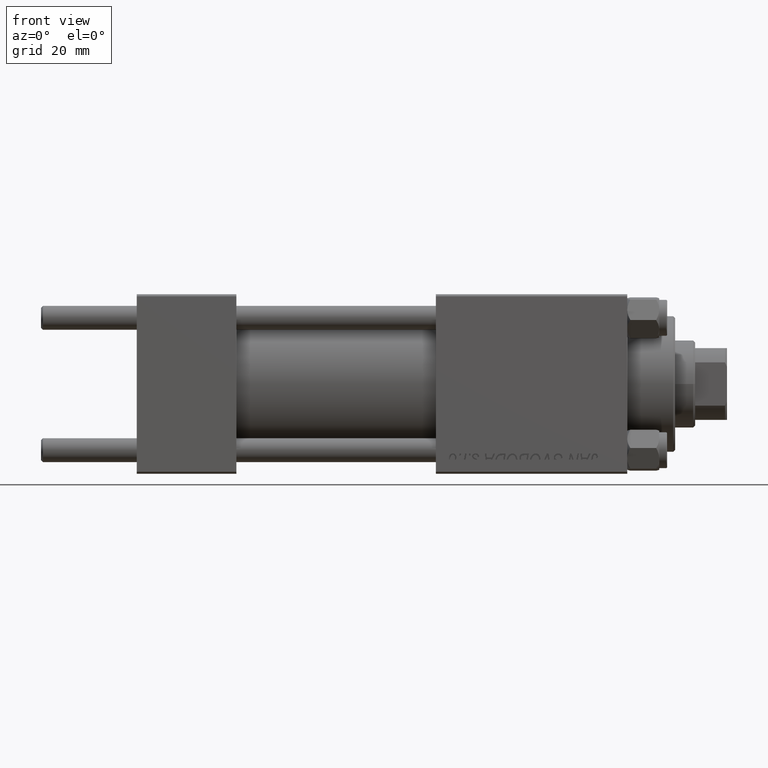
[diagram: clean part render]
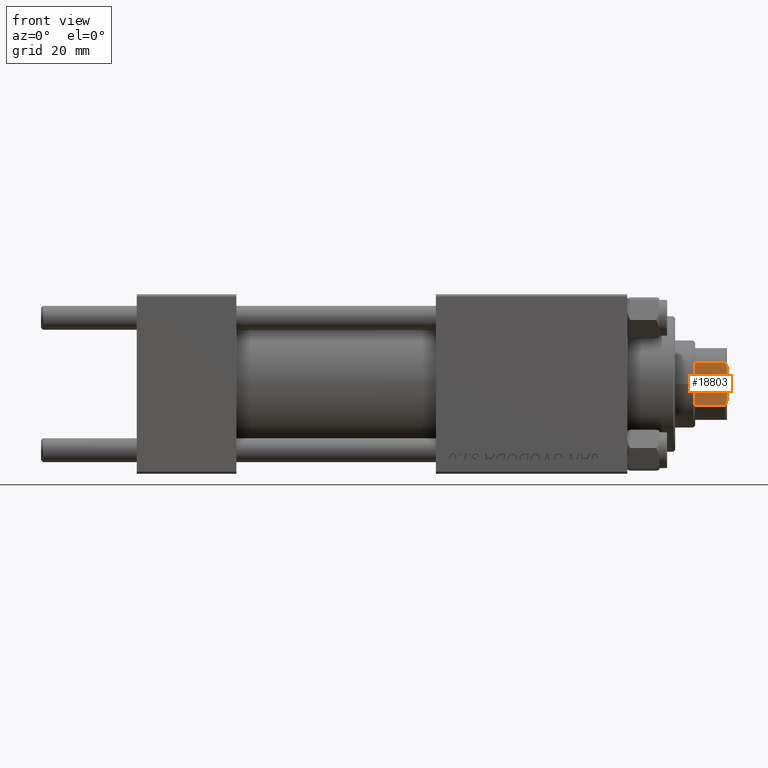
[diagram: same view with one face highlighted and labeled with its STEP entity id]
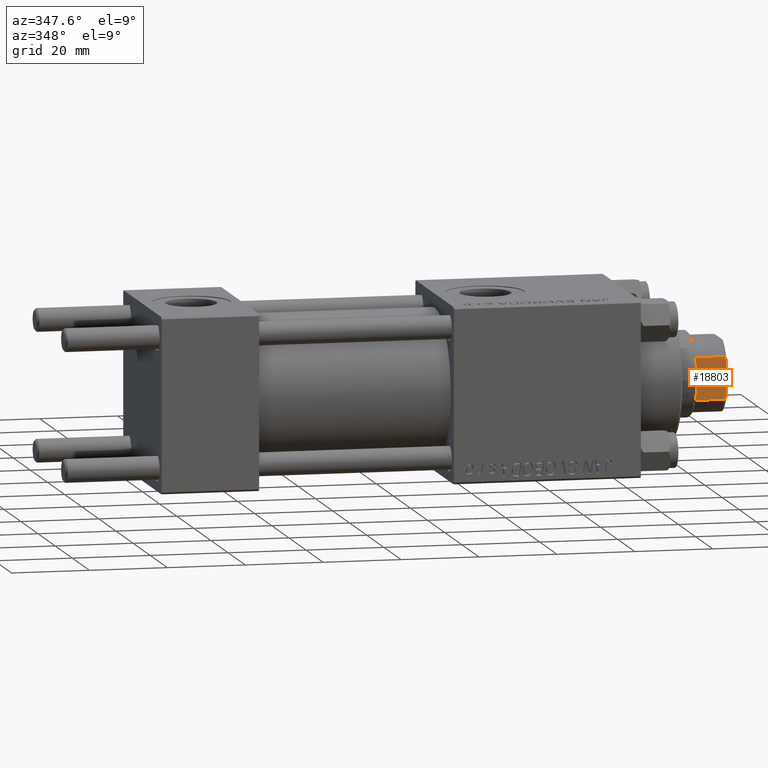
[diagram: same view with one face highlighted and labeled with its STEP entity id]
A machine part, front view. The second image highlights one B-rep face of the part: STEP entity #18803.
A second angle (auxiliary view) of the same face is appended — the face is thin or edge-on in the first view.
In plain terms, the highlighted planar face has unit normal (0, 1, 0).
Its self-contained STEP definition (entity closure, byte-faithful):
#1707 = VERTEX_POINT ( 'NONE', #35439 ) ;
#2202 = CARTESIAN_POINT ( 'NONE',  ( 8.999999999999996447, 5.408326913195991459, 122.4999999999999716 ) ) ;
#2976 = CARTESIAN_POINT ( 'NONE',  ( 8.999999999999996447, 5.408326913195991459, 122.4999999999999716 ) ) ;
#3876 = EDGE_CURVE ( 'NONE', #48873, #24245, #33319, .T. ) ;
#4327 = EDGE_CURVE ( 'NONE', #1707, #42469, #10601, .T. ) ;
#4595 = EDGE_CURVE ( 'NONE', #42469, #48092, #22162, .T. ) ;
#5150 = EDGE_CURVE ( 'NONE', #48873, #22432, #48816, .T. ) ;
#5315 = ORIENTED_EDGE ( 'NONE', *, *, #5150, .F. ) ;
#5819 = DIRECTION ( 'NONE',  ( -1.000000000000000000, -1.927470528863119049E-16, 0.000000000000000000 ) ) ;
#6009 = ORIENTED_EDGE ( 'NONE', *, *, #3876, .T. ) ;
#6088 = CARTESIAN_POINT ( 'NONE',  ( 9.000000000000000000, -4.714305797500252027, 122.8450817439748448 ) ) ;
#6595 = CARTESIAN_POINT ( 'NONE',  ( 8.999999999999996447, -5.408326913195990571, 122.5000000000000000 ) ) ;
#6792 = CARTESIAN_POINT ( 'NONE',  ( 8.999999999999996447, 8.999999999999998224, 115.0000000000000000 ) ) ;
#7089 = CARTESIAN_POINT ( 'NONE',  ( 8.999999999999996447, 5.408326913195991459, 115.0000000000000284 ) ) ;
#7148 = CARTESIAN_POINT ( 'NONE',  ( 8.999999999999998224, -4.358898943540672200, 123.0000000000000000 ) ) ;
#7452 = B_SPLINE_CURVE_WITH_KNOTS ( 'NONE', 3,
 ( #2202, #21934, #14365, #9546 ),
 .UNSPECIFIED., .F., .F.,
 ( 4, 4 ),
 ( 0.000000000000000000, 0.001162453897363273890 ),
 .UNSPECIFIED. ) ;
#8545 = CARTESIAN_POINT ( 'NONE',  ( 8.999999999999996447, -5.408326913195990571, 122.5000000000000000 ) ) ;
#9546 = CARTESIAN_POINT ( 'NONE',  ( 8.999999999999998224, 4.358898943540600257, 123.0000000000000000 ) ) ;
#10601 = LINE ( 'NONE', #6792, #31891 ) ;
#13162 = CARTESIAN_POINT ( 'NONE',  ( 8.999999999999996447, 8.999999999999998224, 123.0000000000000000 ) ) ;
#13373 = CARTESIAN_POINT ( 'NONE',  ( 8.999999999999998224, 4.358898943540600257, 123.0000000000000000 ) ) ;
#14365 = CARTESIAN_POINT ( 'NONE',  ( 8.999999999999998224, 4.714305797500204065, 122.8450817439748306 ) ) ;
#14598 = DIRECTION ( 'NONE',  ( -0.000000000000000000, -0.000000000000000000, 1.000000000000000000 ) ) ;
#14756 = EDGE_LOOP ( 'NONE', ( #27314, #18957, #5315, #6009, #43697, #30934 ) ) ;
#17433 = DIRECTION ( 'NONE',  ( -1.927470528863119049E-16, 1.000000000000000000, -0.000000000000000000 ) ) ;
#17989 = CARTESIAN_POINT ( 'NONE',  ( 9.000000000000000000, -5.063687070142444568, 122.6775166608139216 ) ) ;
#18803 = ADVANCED_FACE ( 'NONE', ( #47832 ), #32650, .F. ) ;
#18957 = ORIENTED_EDGE ( 'NONE', *, *, #24414, .T. ) ;
#19413 = EDGE_CURVE ( 'NONE', #1707, #24245, #30454, .T. ) ;
#20928 = AXIS2_PLACEMENT_3D ( 'NONE', #13162, #5819, #28592 ) ;
#21934 = CARTESIAN_POINT ( 'NONE',  ( 8.999999999999996447, 5.063687070142427693, 122.6775166608138932 ) ) ;
#22027 = CARTESIAN_POINT ( 'NONE',  ( 8.999999999999998224, -4.358898943540672200, 123.0000000000000000 ) ) ;
#22162 = LINE ( 'NONE', #34325, #22191 ) ;
#22191 = VECTOR ( 'NONE', #14598, 1000.000000000000000 ) ;
#22234 = VECTOR ( 'NONE', #17433, 1000.000000000000000 ) ;
#22432 = VERTEX_POINT ( 'NONE', #13373 ) ;
#24245 = VERTEX_POINT ( 'NONE', #8545 ) ;
#24414 = EDGE_CURVE ( 'NONE', #48092, #22432, #7452, .T. ) ;
#27314 = ORIENTED_EDGE ( 'NONE', *, *, #4595, .T. ) ;
#28592 = DIRECTION ( 'NONE',  ( 1.927470528863119049E-16, -1.000000000000000000, 0.000000000000000000 ) ) ;
#29849 = CARTESIAN_POINT ( 'NONE',  ( 8.999999999999996447, 8.999999999999998224, 123.0000000000000000 ) ) ;
#30454 = LINE ( 'NONE', #32796, #40342 ) ;
#30934 = ORIENTED_EDGE ( 'NONE', *, *, #4327, .T. ) ;
#31891 = VECTOR ( 'NONE', #34870, 1000.000000000000000 ) ;
#32650 = PLANE ( 'NONE',  #20928 ) ;
#32796 = CARTESIAN_POINT ( 'NONE',  ( 8.999999999999996447, -5.408326913195990571, -0.001000000000001000089 ) ) ;
#33319 = B_SPLINE_CURVE_WITH_KNOTS ( 'NONE', 3,
 ( #22027, #6088, #17989, #6595 ),
 .UNSPECIFIED., .F., .F.,
 ( 4, 4 ),
 ( 0.000000000000000000, 0.001162453897363195177 ),
 .UNSPECIFIED. ) ;
#34253 = DIRECTION ( 'NONE',  ( -0.000000000000000000, -0.000000000000000000, 1.000000000000000000 ) ) ;
#34325 = CARTESIAN_POINT ( 'NONE',  ( 8.999999999999996447, 5.408326913195991459, -0.001000000000001000089 ) ) ;
#34870 = DIRECTION ( 'NONE',  ( -1.927470528863119049E-16, 1.000000000000000000, -0.000000000000000000 ) ) ;
#35439 = CARTESIAN_POINT ( 'NONE',  ( 8.999999999999996447, -5.408326913195990571, 115.0000000000000284 ) ) ;
#40342 = VECTOR ( 'NONE', #34253, 1000.000000000000000 ) ;
#42469 = VERTEX_POINT ( 'NONE', #7089 ) ;
#43697 = ORIENTED_EDGE ( 'NONE', *, *, #19413, .F. ) ;
#47832 = FACE_OUTER_BOUND ( 'NONE', #14756, .T. ) ;
#48092 = VERTEX_POINT ( 'NONE', #2976 ) ;
#48816 = LINE ( 'NONE', #29849, #22234 ) ;
#48873 = VERTEX_POINT ( 'NONE', #7148 ) ;